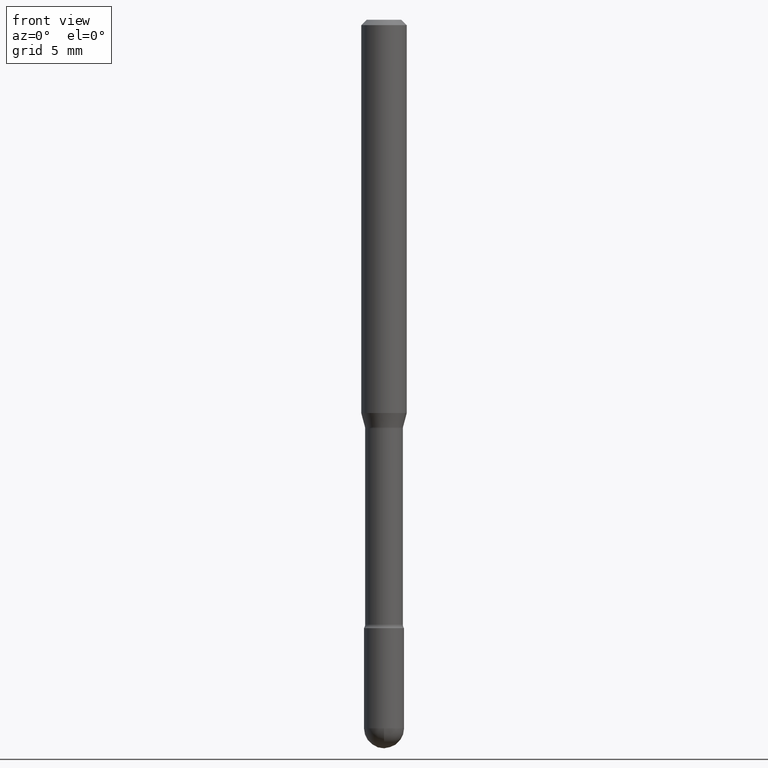
[diagram: clean part render]
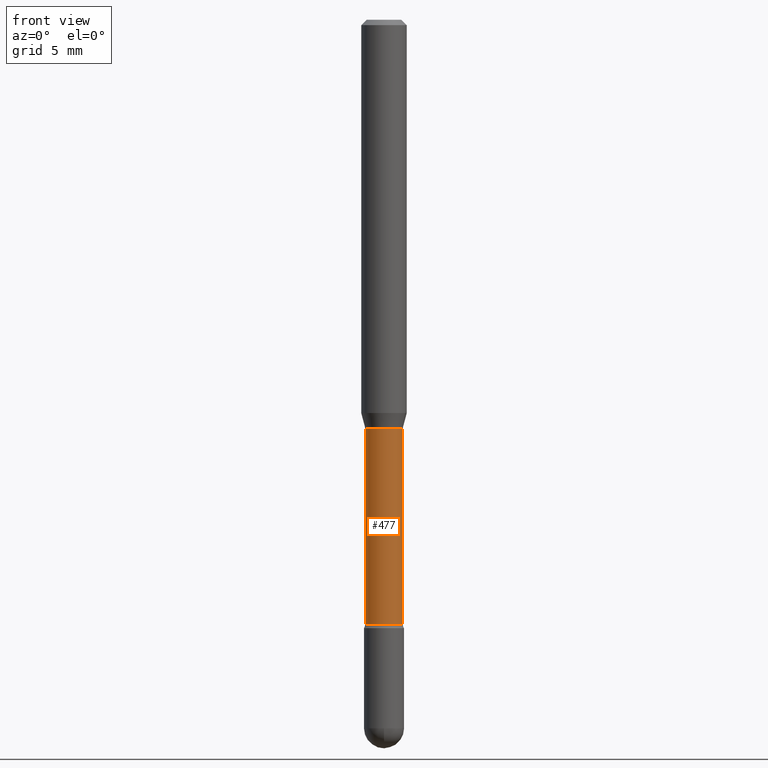
[diagram: same view with one face highlighted and labeled with its STEP entity id]
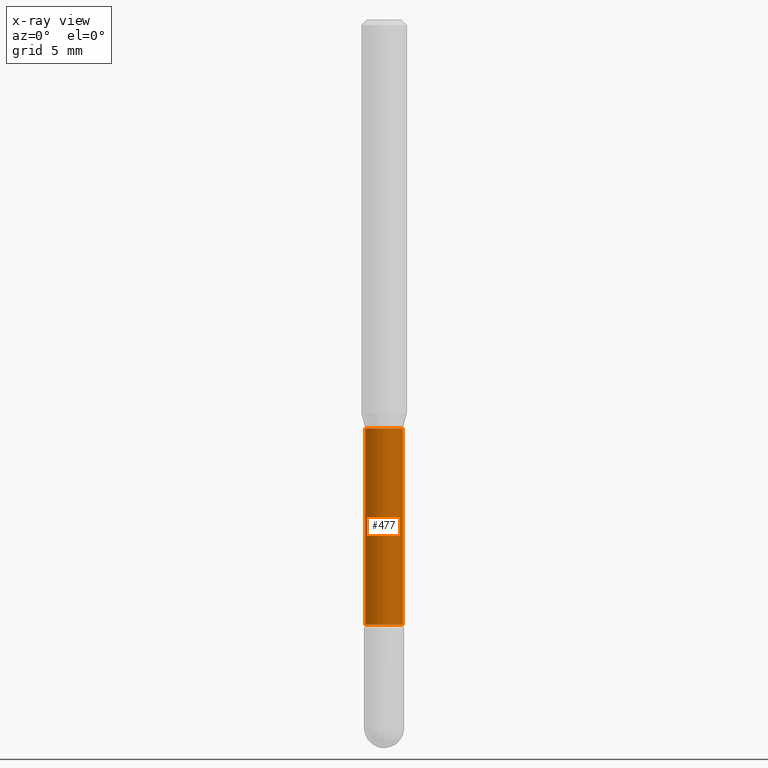
[diagram: x-ray of the same camera — body ghosted, the highlighted face saturated]
A machine part, front view. The second image highlights one B-rep face of the part: STEP entity #477.
The next image is the same camera in x-ray: the body ghosted, the highlighted face saturated — about 0% of this face is hidden behind the body in this view.
In plain terms, the highlighted cylindrical surface (edge-blend (fillet) strip) has radius 1.3132 mm, axis along (-0, 0, 1).
Its self-contained STEP definition (entity closure, byte-faithful):
#24 = DIRECTION ( 'NONE',  ( -2.445468806185136597E-29, 3.491481338843145583E-15, 1.000000000000000000 ) ) ;
#27 = EDGE_CURVE ( 'NONE', #485, #72, #457, .T. ) ;
#32 = FACE_OUTER_BOUND ( 'NONE', #501, .T. ) ;
#36 = CARTESIAN_POINT ( 'NONE',  ( 0.05169999999999999596, -4.278373203518779106E-15, -1.121974787463810630 ) ) ;
#38 = ORIENTED_EDGE ( 'NONE', *, *, #435, .F. ) ;
#48 = CIRCLE ( 'NONE', #133, 0.05169999999999999596 ) ;
#72 = VERTEX_POINT ( 'NONE', #36 ) ;
#76 = CARTESIAN_POINT ( 'NONE',  ( 2.743754344068947151E-29, -3.917354033082399546E-15, -1.121974787463810630 ) ) ;
#80 = CARTESIAN_POINT ( 'NONE',  ( 0.05169999999999999596, -6.159019543879958449E-15, -1.660613307291702645 ) ) ;
#87 = CARTESIAN_POINT ( 'NONE',  ( -0.05169999999999999596, -5.435312555127801674E-15, -1.660613307291702645 ) ) ;
#99 = ORIENTED_EDGE ( 'NONE', *, *, #431, .T. ) ;
#103 = DIRECTION ( 'NONE',  ( 1.000000000000000000, -6.982962677686275388E-15, 0.000000000000000000 ) ) ;
#110 = DIRECTION ( 'NONE',  ( -2.445468806185136597E-29, 3.491481338843145583E-15, 1.000000000000000000 ) ) ;
#133 = AXIS2_PLACEMENT_3D ( 'NONE', #76, #110, #462 ) ;
#139 = VECTOR ( 'NONE', #463, 39.37007874015748143 ) ;
#176 = CARTESIAN_POINT ( 'NONE',  ( -0.05169999999999999596, -4.490326608875016858E-15, -1.121974787463810630 ) ) ;
#203 = CARTESIAN_POINT ( 'NONE',  ( -0.05169999999999999596, 3.673505943879734930E-16, 4.780733988912435487E-16 ) ) ;
#208 = CARTESIAN_POINT ( 'NONE',  ( 0.05169999999999999596, -3.610191704363782779E-16, 4.780733988912485777E-16 ) ) ;
#233 = EDGE_CURVE ( 'NONE', #553, #72, #48, .T. ) ;
#234 = CARTESIAN_POINT ( 'NONE',  ( -1.169113584055446105E-44, 1.669184350826100908E-30, 4.780733988912460139E-16 ) ) ;
#336 = AXIS2_PLACEMENT_3D ( 'NONE', #417, #375, #103 ) ;
#371 = DIRECTION ( 'NONE',  ( -2.445468806185136877E-29, 3.491481338843145188E-15, 1.000000000000000000 ) ) ;
#375 = DIRECTION ( 'NONE',  ( -2.445468806185136597E-29, 3.491481338843145583E-15, 1.000000000000000000 ) ) ;
#391 = CYLINDRICAL_SURFACE ( 'NONE', #395, 0.05169999999999999596 ) ;
#395 = AXIS2_PLACEMENT_3D ( 'NONE', #234, #24, #539 ) ;
#408 = VERTEX_POINT ( 'NONE', #87 ) ;
#417 = CARTESIAN_POINT ( 'NONE',  ( 4.060978042117791300E-29, -5.798000373443578100E-15, -1.660613307291702645 ) ) ;
#431 = EDGE_CURVE ( 'NONE', #408, #485, #445, .T. ) ;
#435 = EDGE_CURVE ( 'NONE', #408, #553, #491, .T. ) ;
#445 = CIRCLE ( 'NONE', #336, 0.05169999999999999596 ) ;
#457 = LINE ( 'NONE', #208, #139 ) ;
#462 = DIRECTION ( 'NONE',  ( 1.000000000000000000, -6.982962677686265922E-15, 0.000000000000000000 ) ) ;
#463 = DIRECTION ( 'NONE',  ( -2.445468806185136877E-29, 3.491481338843145188E-15, 1.000000000000000000 ) ) ;
#477 = ADVANCED_FACE ( 'NONE', ( #32 ), #391, .T. ) ;
#485 = VERTEX_POINT ( 'NONE', #80 ) ;
#491 = LINE ( 'NONE', #203, #537 ) ;
#501 = EDGE_LOOP ( 'NONE', ( #38, #99, #512, #561 ) ) ;
#512 = ORIENTED_EDGE ( 'NONE', *, *, #27, .T. ) ;
#537 = VECTOR ( 'NONE', #371, 39.37007874015748143 ) ;
#539 = DIRECTION ( 'NONE',  ( 1.000000000000000000, -6.982962677686266711E-15, 4.927827573631271447E-29 ) ) ;
#553 = VERTEX_POINT ( 'NONE', #176 ) ;
#561 = ORIENTED_EDGE ( 'NONE', *, *, #233, .F. ) ;